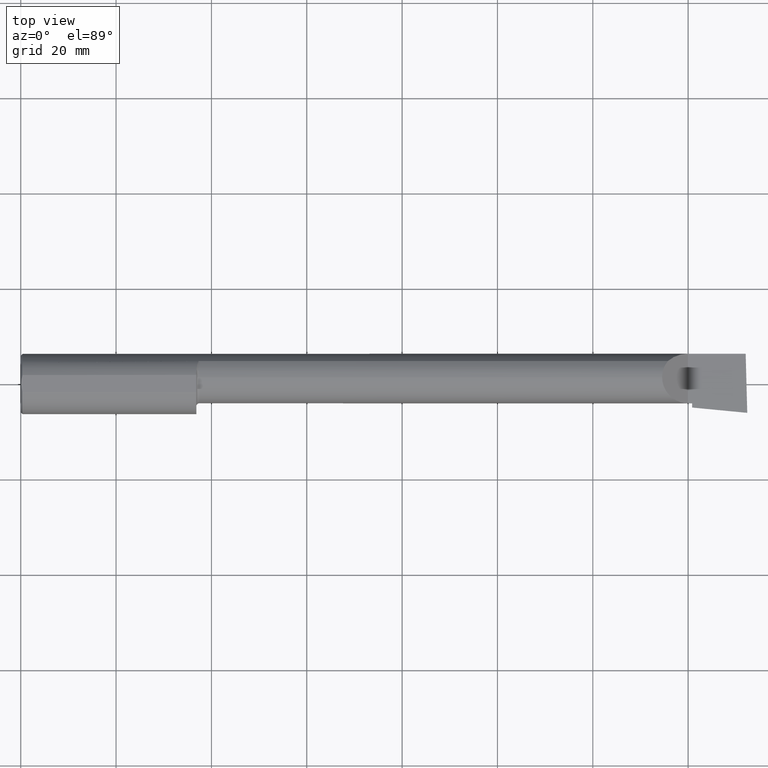
[diagram: clean part render]
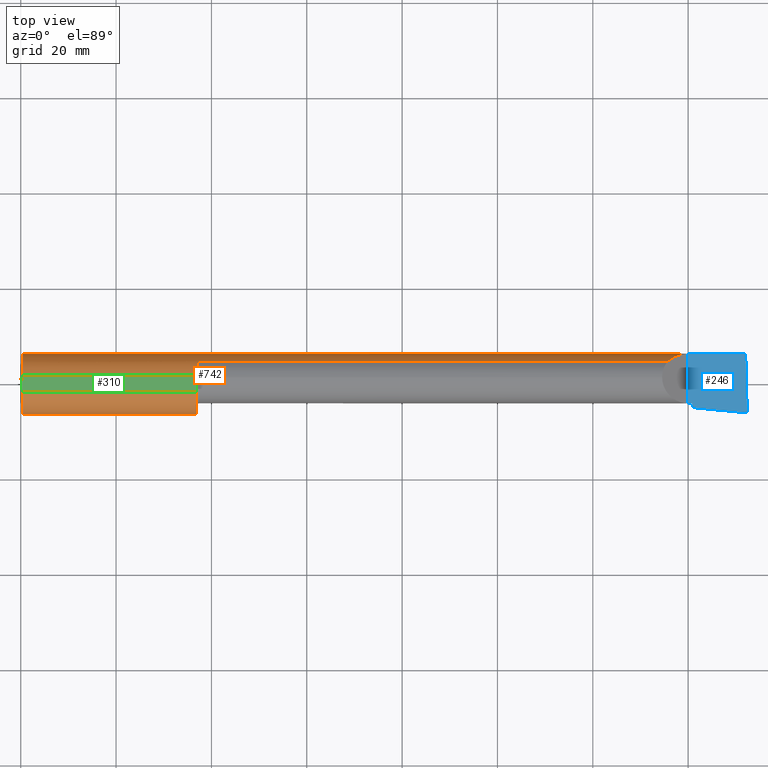
[diagram: same view with three faces highlighted in distinct colors, each labeled with its STEP entity id]
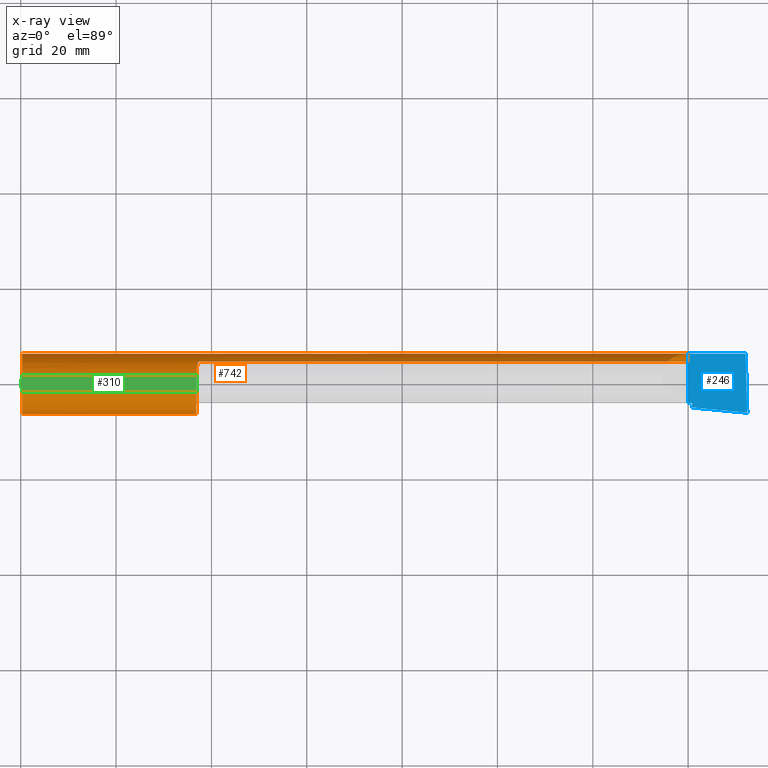
[diagram: x-ray of the same camera — body ghosted, the three highlighted faces saturated]
A machine part, top view with three faces highlighted in distinct colors.
The next image is the same camera in x-ray (body ghosted, the three faces saturated) — at least one of them is partly hidden behind the body in this view.
Their STEP definitions:

[orange] entity #742 — the highlighted cylindrical surface (edge-blend (fillet) strip) has radius 6.3462 mm, axis along (-1, -0, -0).
#1 = CARTESIAN_POINT ( 'NONE',  ( 5.344079160038587517, 0.1868028301886762721, 0.1659208399614119367 ) ) ;
#4 = AXIS2_PLACEMENT_3D ( 'NONE', #417, #405, #480 ) ;
#14 = LINE ( 'NONE', #159, #235 ) ;
#19 = EDGE_CURVE ( 'NONE', #177, #350, #317, .T. ) ;
#33 = CARTESIAN_POINT ( 'NONE',  ( 1.469285582744839669, 0.1841881072713785483, -0.1688230283719376612 ) ) ;
#34 = CARTESIAN_POINT ( 'NONE',  ( 5.968970726278977956, 0.1868028301886783815, -0.1659208399614098550 ) ) ;
#44 = ORIENTED_EDGE ( 'NONE', *, *, #481, .T. ) ;
#45 =( BOUNDED_CURVE ( )  B_SPLINE_CURVE ( 3, ( #640, #288, #528, #759 ),
 .UNSPECIFIED., .F., .T. ) 
 B_SPLINE_CURVE_WITH_KNOTS ( ( 4, 4 ),
 ( 0.8445312661599968518, 1.570796326794897002 ),
 .UNSPECIFIED. ) 
 CURVE ( )  GEOMETRIC_REPRESENTATION_ITEM ( )  RATIONAL_B_SPLINE_CURVE ( ( 1.000000000000000000, 0.9565258159410975347, 0.9565258159410975347, 1.000000000000000000 ) ) 
 REPRESENTATION_ITEM ( '' )  );
#48 = VERTEX_POINT ( 'NONE', #283 ) ;
#55 = ORIENTED_EDGE ( 'NONE', *, *, #409, .T. ) ;
#59 = ORIENTED_EDGE ( 'NONE', *, *, #421, .T. ) ;
#72 = LINE ( 'NONE', #581, #437 ) ;
#84 = CARTESIAN_POINT ( 'NONE',  ( 1.450000000000000622, 0.08036415094339396936, 0.2365726648265757681 ) ) ;
#89 = EDGE_CURVE ( 'NONE', #429, #444, #293, .T. ) ;
#90 = DIRECTION ( 'NONE',  ( -1.000000000000000000, -0.000000000000000000, -0.000000000000000000 ) ) ;
#99 = DIRECTION ( 'NONE',  ( 1.000000000000000000, 0.000000000000000000, 0.000000000000000000 ) ) ;
#103 = CARTESIAN_POINT ( 'NONE',  ( 1.469294329172793789, 0.1841965204963163516, 0.1688138510234162559 ) ) ;
#121 = CARTESIAN_POINT ( 'NONE',  ( 1.450000000000000622, 0.08036415094339396936, -0.2365726648265757681 ) ) ;
#134 = ORIENTED_EDGE ( 'NONE', *, *, #229, .T. ) ;
#137 = CARTESIAN_POINT ( 'NONE',  ( 1.465875558094660303, 0.1799506819598015173, -0.1733486322212205444 ) ) ;
#150 = CARTESIAN_POINT ( 'NONE',  ( 1.452700393434439796, 0.1312406203802464477, 0.2128933010837863737 ) ) ;
#159 = CARTESIAN_POINT ( 'NONE',  ( 3.510000000000000675, 0.1868028301886783815, -0.1659208399614098550 ) ) ;
#163 = CIRCLE ( 'NONE', #382, 0.2498499999999999888 ) ;
#168 = CARTESIAN_POINT ( 'NONE',  ( 1.470147539572908890, 0.1849815983377210704, 0.1679517088135094594 ) ) ;
#172 = VERTEX_POINT ( 'NONE', #543 ) ;
#177 = VERTEX_POINT ( 'NONE', #121 ) ;
#182 = EDGE_LOOP ( 'NONE', ( #257, #55, #541, #341, #530, #490, #228, #534, #647, #597, #134, #44, #59 ) ) ;
#194 = DIRECTION ( 'NONE',  ( 1.000000000000000000, 0.000000000000000000, 0.000000000000000000 ) ) ;
#199 = AXIS2_PLACEMENT_3D ( 'NONE', #632, #336, #520 ) ;
#204 = LINE ( 'NONE', #440, #494 ) ;
#206 = CARTESIAN_POINT ( 'NONE',  ( 1.451680899895054111, 0.1215019751025605416, 0.2186055937858626952 ) ) ;
#213 = CARTESIAN_POINT ( 'NONE',  ( 1.467022161877250541, 0.1817412653940166101, 0.1714670312165164356 ) ) ;
#220 = CARTESIAN_POINT ( 'NONE',  ( 0.01499999999999998904, 0.000000000000000000, -0.2498499999999999888 ) ) ;
#225 = VERTEX_POINT ( 'NONE', #34 ) ;
#228 = ORIENTED_EDGE ( 'NONE', *, *, #547, .F. ) ;
#229 = EDGE_CURVE ( 'NONE', #670, #750, #204, .T. ) ;
#231 = DIRECTION ( 'NONE',  ( -1.000000000000000000, -0.000000000000000000, -0.000000000000000000 ) ) ;
#234 = FACE_OUTER_BOUND ( 'NONE', #182, .T. ) ;
#235 = VECTOR ( 'NONE', #602, 39.37007874015748143 ) ;
#251 = CIRCLE ( 'NONE', #747, 0.2498499999999999888 ) ;
#254 = CARTESIAN_POINT ( 'NONE',  ( 0.01499999999999998904, 0.000000000000000000, 0.000000000000000000 ) ) ;
#257 = ORIENTED_EDGE ( 'NONE', *, *, #465, .F. ) ;
#265 = CARTESIAN_POINT ( 'NONE',  ( 5.986926801651457630, 0.2498499999999998222, -2.376133405444120600E-16 ) ) ;
#283 = CARTESIAN_POINT ( 'NONE',  ( 1.475000000000000533, 0.1868028301886770215, -0.1659208399614113261 ) ) ;
#288 = CARTESIAN_POINT ( 'NONE',  ( 5.390325100969864280, 0.2278791102234763999, 0.1196748990301354371 ) ) ;
#293 = CIRCLE ( 'NONE', #532, 0.2498499999999999888 ) ;
#297 = EDGE_CURVE ( 'NONE', #601, #311, #251, .T. ) ;
#299 = CYLINDRICAL_SURFACE ( 'NONE', #4, 0.2498499999999999888 ) ;
#302 = DIRECTION ( 'NONE',  ( 1.000000000000000000, 0.000000000000000000, 0.000000000000000000 ) ) ;
#311 = VERTEX_POINT ( 'NONE', #510 ) ;
#317 = CIRCLE ( 'NONE', #199, 0.2498499999999999888 ) ;
#320 = EDGE_CURVE ( 'NONE', #311, #670, #762, .T. ) ;
#321 = CARTESIAN_POINT ( 'NONE',  ( 1.457342647456793427, 0.1582204157543801448, 0.1936739931581306640 ) ) ;
#336 = DIRECTION ( 'NONE',  ( -1.000000000000000000, -0.000000000000000000, -0.000000000000000000 ) ) ;
#338 = CARTESIAN_POINT ( 'NONE',  ( 5.979603243914508148, 0.2498499999999999610, -0.06185424669427579819 ) ) ;
#341 = ORIENTED_EDGE ( 'NONE', *, *, #19, .T. ) ;
#350 = VERTEX_POINT ( 'NONE', #660 ) ;
#354 =( BOUNDED_CURVE ( )  B_SPLINE_CURVE ( 3, ( #389, #634, #338, #576 ),
 .UNSPECIFIED., .F., .T. ) 
 B_SPLINE_CURVE_WITH_KNOTS ( ( 4, 4 ),
 ( 0.6220170400679957412, 1.348282100702882680 ),
 .UNSPECIFIED. ) 
 CURVE ( )  GEOMETRIC_REPRESENTATION_ITEM ( )  RATIONAL_B_SPLINE_CURVE ( ( 1.000000000000000000, 0.9565258159410989780, 0.9565258159410989780, 1.000000000000000000 ) ) 
 REPRESENTATION_ITEM ( '' )  );
#359 = CARTESIAN_POINT ( 'NONE',  ( 0.000000000000000000, -0.06997856814768378675, 0.2398499999999999244 ) ) ;
#367 = CARTESIAN_POINT ( 'NONE',  ( 1.462797058507745662, 0.1743943839926563877, -0.1789958554125722079 ) ) ;
#375 = CARTESIAN_POINT ( 'NONE',  ( 1.472232603162241027, 0.1862758070845851321, -0.1665151405181452271 ) ) ;
#380 = CARTESIAN_POINT ( 'NONE',  ( 1.450000000000000622, 0.06997856814768384226, 0.2398500000000000076 ) ) ;
#382 = AXIS2_PLACEMENT_3D ( 'NONE', #254, #542, #728 ) ;
#384 = CARTESIAN_POINT ( 'NONE',  ( 1.455552616244823128, 0.1495611067857145482, 0.2004473332852690914 ) ) ;
#386 = LINE ( 'NONE', #745, #616 ) ;
#389 = CARTESIAN_POINT ( 'NONE',  ( 5.968970726278977956, 0.1868028301886783815, -0.1659208399614098550 ) ) ;
#404 = EDGE_CURVE ( 'NONE', #652, #601, #72, .T. ) ;
#405 = DIRECTION ( 'NONE',  ( -1.000000000000000000, -0.000000000000000000, -0.000000000000000000 ) ) ;
#409 = EDGE_CURVE ( 'NONE', #225, #48, #14, .T. ) ;
#410 = EDGE_CURVE ( 'NONE', #350, #444, #419, .T. ) ;
#417 = CARTESIAN_POINT ( 'NONE',  ( 0.000000000000000000, 0.000000000000000000, 0.000000000000000000 ) ) ;
#419 = LINE ( 'NONE', #359, #516 ) ;
#421 = EDGE_CURVE ( 'NONE', #172, #716, #386, .T. ) ;
#425 = CARTESIAN_POINT ( 'NONE',  ( 0.01499999999999998904, 0.000000000000000000, 0.000000000000000000 ) ) ;
#429 = VERTEX_POINT ( 'NONE', #220 ) ;
#437 = VECTOR ( 'NONE', #99, 39.37007874015748143 ) ;
#440 = CARTESIAN_POINT ( 'NONE',  ( 3.510000000000000675, 0.1868028301886783815, 0.1659208399614098550 ) ) ;
#444 = VERTEX_POINT ( 'NONE', #517 ) ;
#447 = CARTESIAN_POINT ( 'NONE',  ( 1.475000000000000533, 0.1868028301886768827, 0.1659208399614114093 ) ) ;
#465 = EDGE_CURVE ( 'NONE', #225, #716, #354, .T. ) ;
#480 = DIRECTION ( 'NONE',  ( 0.000000000000000000, 0.000000000000000000, 1.000000000000000000 ) ) ;
#481 = EDGE_CURVE ( 'NONE', #750, #172, #45, .T. ) ;
#483 = CARTESIAN_POINT ( 'NONE',  ( 1.462765002235294043, 0.1743275501927384064, 0.1790622127600498825 ) ) ;
#485 = B_SPLINE_CURVE_WITH_KNOTS ( 'NONE', 3,
 ( #503, #555, #375, #617, #33, #733, #137, #367, #486, #557, #726, #611, #613, #620 ),
 .UNSPECIFIED., .F., .F.,
 ( 4, 2, 2, 2, 2, 2, 4 ),
 ( 1.967619685288262155E-07, 0.0001090840123077873724, 0.0002179712626470459212, 0.0004357457633255741591, 0.0008712947646826288460, 0.001742392767396743749, 0.003484588772824970086 ),
 .UNSPECIFIED. ) ;
#486 = CARTESIAN_POINT ( 'NONE',  ( 1.461285743882608346, 0.1704402150608090860, -0.1827701868778719430 ) ) ;
#490 = ORIENTED_EDGE ( 'NONE', *, *, #89, .F. ) ;
#494 = VECTOR ( 'NONE', #194, 39.37007874015748143 ) ;
#503 = CARTESIAN_POINT ( 'NONE',  ( 1.475000000000000533, 0.1868028301886770215, -0.1659208399614113261 ) ) ;
#510 = CARTESIAN_POINT ( 'NONE',  ( 1.450000000000000622, 0.08036415094339396936, 0.2365726648265757681 ) ) ;
#516 = VECTOR ( 'NONE', #703, 39.37007874015748143 ) ;
#517 = CARTESIAN_POINT ( 'NONE',  ( 0.01499999999999965423, -0.06997856814768402267, 0.2398500000000000076 ) ) ;
#519 = EDGE_CURVE ( 'NONE', #48, #177, #485, .T. ) ;
#520 = DIRECTION ( 'NONE',  ( 0.000000000000000000, 0.000000000000000000, 1.000000000000000000 ) ) ;
#528 = CARTESIAN_POINT ( 'NONE',  ( 5.448145753305722927, 0.2498500000000000443, 0.06185424669427648514 ) ) ;
#530 = ORIENTED_EDGE ( 'NONE', *, *, #410, .T. ) ;
#532 = AXIS2_PLACEMENT_3D ( 'NONE', #425, #231, #668 ) ;
#534 = ORIENTED_EDGE ( 'NONE', *, *, #404, .T. ) ;
#541 = ORIENTED_EDGE ( 'NONE', *, *, #519, .T. ) ;
#542 = DIRECTION ( 'NONE',  ( -1.000000000000000000, -0.000000000000000000, -0.000000000000000000 ) ) ;
#543 = CARTESIAN_POINT ( 'NONE',  ( 5.510000000000000675, 0.2498499999999998222, -1.849216666712503932E-16 ) ) ;
#547 = EDGE_CURVE ( 'NONE', #652, #429, #163, .T. ) ;
#555 = CARTESIAN_POINT ( 'NONE',  ( 1.473547768521294321, 0.1868028301886769937, -0.1659208399614114648 ) ) ;
#556 = CARTESIAN_POINT ( 'NONE',  ( 1.461269318387891758, 0.1703938977634081586, 0.1828127877825272696 ) ) ;
#557 = CARTESIAN_POINT ( 'NONE',  ( 1.457341173198634765, 0.1582250006961533895, -0.1936724403215147883 ) ) ;
#560 = CARTESIAN_POINT ( 'NONE',  ( 0.01499999999999998904, 0.06997856814768384226, 0.2398499999999999244 ) ) ;
#571 = CARTESIAN_POINT ( 'NONE',  ( 1.473549916698492890, 0.1868028301886769660, 0.1659208399614114371 ) ) ;
#576 = CARTESIAN_POINT ( 'NONE',  ( 5.986926801651457630, 0.2498499999999998222, -2.376133405444120600E-16 ) ) ;
#581 = CARTESIAN_POINT ( 'NONE',  ( 0.000000000000000000, 0.06997856814768384226, 0.2398499999999999244 ) ) ;
#597 = ORIENTED_EDGE ( 'NONE', *, *, #320, .T. ) ;
#601 = VERTEX_POINT ( 'NONE', #380 ) ;
#602 = DIRECTION ( 'NONE',  ( -1.000000000000000000, -0.000000000000000000, -0.000000000000000000 ) ) ;
#611 = CARTESIAN_POINT ( 'NONE',  ( 1.451227564404961701, 0.1217005943024268705, -0.2193523119135150634 ) ) ;
#613 = CARTESIAN_POINT ( 'NONE',  ( 1.449999999999990630, 0.1016924291521863755, -0.2293274111511752200 ) ) ;
#614 = CARTESIAN_POINT ( 'NONE',  ( 1.450331894516965203, 0.1014003285145096273, 0.2286243840132596294 ) ) ;
#616 = VECTOR ( 'NONE', #302, 39.37007874015748143 ) ;
#617 = CARTESIAN_POINT ( 'NONE',  ( 1.470138573936401016, 0.1849738682364304998, -0.1679602226613279570 ) ) ;
#619 = CARTESIAN_POINT ( 'NONE',  ( 1.450000000000000400, 0.09103905338546344761, 0.2329463816641093032 ) ) ;
#620 = CARTESIAN_POINT ( 'NONE',  ( 1.450000000000000622, 0.08036415094339396936, -0.2365726648265757681 ) ) ;
#623 = CARTESIAN_POINT ( 'NONE',  ( 1.450000000000000622, 0.000000000000000000, 0.000000000000000000 ) ) ;
#632 = CARTESIAN_POINT ( 'NONE',  ( 1.450000000000000622, 0.000000000000000000, 0.000000000000000000 ) ) ;
#634 = CARTESIAN_POINT ( 'NONE',  ( 5.973345850378710686, 0.2278791102234770383, -0.1196748990301337856 ) ) ;
#640 = CARTESIAN_POINT ( 'NONE',  ( 5.344079160038587517, 0.1868028301886762721, 0.1659208399614119367 ) ) ;
#647 = ORIENTED_EDGE ( 'NONE', *, *, #297, .T. ) ;
#652 = VERTEX_POINT ( 'NONE', #560 ) ;
#660 = CARTESIAN_POINT ( 'NONE',  ( 1.450000000000000622, -0.06997856814768405043, 0.2398500000000000076 ) ) ;
#668 = DIRECTION ( 'NONE',  ( 0.000000000000000000, 0.000000000000000000, 1.000000000000000000 ) ) ;
#670 = VERTEX_POINT ( 'NONE', #447 ) ;
#674 = DIRECTION ( 'NONE',  ( 0.000000000000000000, 0.000000000000000000, 1.000000000000000000 ) ) ;
#690 = CARTESIAN_POINT ( 'NONE',  ( 1.475000000000000533, 0.1868028301886768827, 0.1659208399614114093 ) ) ;
#692 = CARTESIAN_POINT ( 'NONE',  ( 1.472248316546591829, 0.1862833954073861431, 0.1665066509556037133 ) ) ;
#696 = CARTESIAN_POINT ( 'NONE',  ( 1.465861643147096771, 0.1799299906519273851, 0.1733704358813205892 ) ) ;
#703 = DIRECTION ( 'NONE',  ( -1.000000000000000000, -0.000000000000000000, -0.000000000000000000 ) ) ;
#716 = VERTEX_POINT ( 'NONE', #265 ) ;
#726 = CARTESIAN_POINT ( 'NONE',  ( 1.455537042546467763, 0.1495003888704960482, -0.2004994225712694034 ) ) ;
#728 = DIRECTION ( 'NONE',  ( 0.000000000000000000, 0.000000000000000000, 1.000000000000000000 ) ) ;
#733 = CARTESIAN_POINT ( 'NONE',  ( 1.467016733372314530, 0.1817333077058744806, -0.1714754572696089441 ) ) ;
#742 = ADVANCED_FACE ( 'NONE', ( #234 ), #299, .T. ) ;
#745 = CARTESIAN_POINT ( 'NONE',  ( 4.678149108241350816E-32, 0.2498499999999999888, 4.235963549344508711E-16 ) ) ;
#747 = AXIS2_PLACEMENT_3D ( 'NONE', #623, #90, #674 ) ;
#750 = VERTEX_POINT ( 'NONE', #1 ) ;
#759 = CARTESIAN_POINT ( 'NONE',  ( 5.510000000000000675, 0.2498499999999998222, -1.849216666712503932E-16 ) ) ;
#762 = B_SPLINE_CURVE_WITH_KNOTS ( 'NONE', 3,
 ( #84, #619, #614, #206, #150, #384, #321, #556, #483, #696, #213, #103, #168, #692, #571, #690 ),
 .UNSPECIFIED., .F., .F.,
 ( 4, 2, 2, 2, 2, 2, 2, 4 ),
 ( 0.0001284169230012125818, 0.0009841683951816522676, 0.001839919867362092062, 0.002695671339542531856, 0.003123547075632751753, 0.003337484943677858015, 0.003444453877700411580, 0.003551422811722965579 ),
 .UNSPECIFIED. ) ;

[blue] entity #246 — the highlighted planar face has unit normal (-0, 0, -1).
#23 = CARTESIAN_POINT ( 'NONE',  ( 5.510000000000000675, -0.1601500000000002644, -1.849216666712503932E-16 ) ) ;
#36 = VECTOR ( 'NONE', #727, 39.37007874015748143 ) ;
#49 = LINE ( 'NONE', #148, #702 ) ;
#51 = EDGE_LOOP ( 'NONE', ( #296, #216, #318, #468, #169, #113 ) ) ;
#52 = VECTOR ( 'NONE', #523, 39.37007874015748143 ) ;
#77 = DIRECTION ( 'NONE',  ( 1.000000000000000000, 0.000000000000000000, 0.000000000000000000 ) ) ;
#95 = LINE ( 'NONE', #209, #52 ) ;
#110 = EDGE_CURVE ( 'NONE', #268, #224, #719, .T. ) ;
#113 = ORIENTED_EDGE ( 'NONE', *, *, #687, .T. ) ;
#144 = PLANE ( 'NONE',  #448 ) ;
#148 = CARTESIAN_POINT ( 'NONE',  ( 6.001130543297605868, -0.2382588589380725819, -2.391615553386899761E-16 ) ) ;
#169 = ORIENTED_EDGE ( 'NONE', *, *, #110, .T. ) ;
#172 = VERTEX_POINT ( 'NONE', #543 ) ;
#175 = VERTEX_POINT ( 'NONE', #23 ) ;
#189 = DIRECTION ( 'NONE',  ( 0.02677973311239231768, -0.9996413586354002678, -2.916664445122107707E-18 ) ) ;
#209 = CARTESIAN_POINT ( 'NONE',  ( 5.510000000000000675, -0.2500000000000000555, -1.849216666712503932E-16 ) ) ;
#216 = ORIENTED_EDGE ( 'NONE', *, *, #421, .F. ) ;
#224 = VERTEX_POINT ( 'NONE', #621 ) ;
#246 = ADVANCED_FACE ( 'NONE', ( #431 ), #144, .F. ) ;
#253 = CARTESIAN_POINT ( 'NONE',  ( 5.544999999999999929, -0.2500000000000000555, -1.887870261551340527E-16 ) ) ;
#265 = CARTESIAN_POINT ( 'NONE',  ( 5.986926801651457630, 0.2498499999999998222, -2.376133405444120600E-16 ) ) ;
#268 = VERTEX_POINT ( 'NONE', #500 ) ;
#296 = ORIENTED_EDGE ( 'NONE', *, *, #492, .F. ) ;
#302 = DIRECTION ( 'NONE',  ( 1.000000000000000000, 0.000000000000000000, 0.000000000000000000 ) ) ;
#318 = ORIENTED_EDGE ( 'NONE', *, *, #439, .F. ) ;
#323 = CARTESIAN_POINT ( 'NONE',  ( 6.000000000000000888, -0.2500000000000000555, -2.390366994456230070E-16 ) ) ;
#327 = CARTESIAN_POINT ( 'NONE',  ( 6.000000000000001776, -0.2381500000000003059, 4.268512490100411402E-16 ) ) ;
#329 = VECTOR ( 'NONE', #189, 39.37007874015748854 ) ;
#376 = DIRECTION ( 'NONE',  ( -1.000000000000000000, 0.000000000000000000, 1.104388423966789920E-16 ) ) ;
#386 = LINE ( 'NONE', #745, #616 ) ;
#421 = EDGE_CURVE ( 'NONE', #172, #716, #386, .T. ) ;
#427 = LINE ( 'NONE', #720, #562 ) ;
#431 = FACE_OUTER_BOUND ( 'NONE', #51, .T. ) ;
#439 = EDGE_CURVE ( 'NONE', #175, #172, #95, .T. ) ;
#443 = DIRECTION ( 'NONE',  ( -1.104388423966789920E-16, 0.000000000000000000, -1.000000000000000000 ) ) ;
#448 = AXIS2_PLACEMENT_3D ( 'NONE', #323, #443, #376 ) ;
#459 = LINE ( 'NONE', #464, #329 ) ;
#464 = CARTESIAN_POINT ( 'NONE',  ( 6.000317226026190554, -0.2499915017238489856, -2.390717335207336421E-16 ) ) ;
#468 = ORIENTED_EDGE ( 'NONE', *, *, #567, .T. ) ;
#492 = EDGE_CURVE ( 'NONE', #716, #704, #459, .T. ) ;
#500 = CARTESIAN_POINT ( 'NONE',  ( 5.544999999999999929, -0.1601499999999999868, 4.235963549344505753E-16 ) ) ;
#523 = DIRECTION ( 'NONE',  ( -0.000000000000000000, 1.000000000000000000, -0.000000000000000000 ) ) ;
#543 = CARTESIAN_POINT ( 'NONE',  ( 5.510000000000000675, 0.2498499999999998222, -1.849216666712503932E-16 ) ) ;
#562 = VECTOR ( 'NONE', #77, 39.37007874015748143 ) ;
#567 = EDGE_CURVE ( 'NONE', #175, #268, #427, .T. ) ;
#616 = VECTOR ( 'NONE', #302, 39.37007874015748143 ) ;
#621 = CARTESIAN_POINT ( 'NONE',  ( 5.544999999999999929, -0.1943384830701199995, 4.241834287037283735E-16 ) ) ;
#687 = EDGE_CURVE ( 'NONE', #224, #704, #49, .T. ) ;
#702 = VECTOR ( 'NONE', #748, 39.37007874015748854 ) ;
#704 = VERTEX_POINT ( 'NONE', #327 ) ;
#716 = VERTEX_POINT ( 'NONE', #265 ) ;
#719 = LINE ( 'NONE', #253, #36 ) ;
#720 = CARTESIAN_POINT ( 'NONE',  ( 4.678149108241350816E-32, -0.1601500000000002366, 4.235963549344508711E-16 ) ) ;
#727 = DIRECTION ( 'NONE',  ( 0.000000000000000000, -1.000000000000000000, 0.000000000000000000 ) ) ;
#745 = CARTESIAN_POINT ( 'NONE',  ( 4.678149108241350816E-32, 0.2498499999999999888, 4.235963549344508711E-16 ) ) ;
#748 = DIRECTION ( 'NONE',  ( 0.9953961983671787417, -0.09584575252022418945, -1.087413588444485978E-16 ) ) ;

[green] entity #310 — the highlighted planar face has unit normal (0, -0, -1).
#43 = DIRECTION ( 'NONE',  ( 0.000000000000000000, -1.138839417068644240E-16, -1.000000000000000000 ) ) ;
#53 = CARTESIAN_POINT ( 'NONE',  ( 0.004999999999999696527, 5.665694225652706815E-17, 0.2398500000000000076 ) ) ;
#72 = LINE ( 'NONE', #581, #437 ) ;
#81 = CARTESIAN_POINT ( 'NONE',  ( 0.004999999999999696527, 5.665694225652706815E-17, 0.2398500000000000076 ) ) ;
#93 = PLANE ( 'NONE',  #278 ) ;
#94 = CARTESIAN_POINT ( 'NONE',  ( 0.01180609504125302439, -0.05857511741890349816, 0.2398500000000000354 ) ) ;
#98 = EDGE_CURVE ( 'NONE', #219, #652, #511, .T. ) ;
#99 = DIRECTION ( 'NONE',  ( 1.000000000000000000, 0.000000000000000000, 0.000000000000000000 ) ) ;
#130 = CARTESIAN_POINT ( 'NONE',  ( 0.004999999999999972349, 0.01185123536186991414, 0.2398500000000000631 ) ) ;
#131 = ORIENTED_EDGE ( 'NONE', *, *, #625, .F. ) ;
#152 = CARTESIAN_POINT ( 'NONE',  ( 0.01499999999999965423, -0.06997856814768402267, 0.2398500000000000076 ) ) ;
#155 = EDGE_CURVE ( 'NONE', #350, #601, #478, .T. ) ;
#158 = CARTESIAN_POINT ( 'NONE',  ( 0.009274236576542723223, -0.04692405468904862348, 0.2398500000000000354 ) ) ;
#176 = B_SPLINE_CURVE_WITH_KNOTS ( 'NONE', 3,
 ( #152, #94, #158, #324, #573, #53 ),
 .UNSPECIFIED., .F., .F.,
 ( 4, 2, 4 ),
 ( 0.002856522843320430643, 0.003750867165537647135, 0.004645211487754864060 ),
 .UNSPECIFIED. ) ;
#184 = CARTESIAN_POINT ( 'NONE',  ( 0.01181966702888973680, 0.05862357455657494359, 0.2398500000000000354 ) ) ;
#193 = DIRECTION ( 'NONE',  ( 0.000000000000000000, 1.000000000000000000, -1.138839417068644240E-16 ) ) ;
#219 = VERTEX_POINT ( 'NONE', #568 ) ;
#238 = CARTESIAN_POINT ( 'NONE',  ( 0.005899890343961516036, 0.02378560009989256346, 0.2398500000000000354 ) ) ;
#267 = DIRECTION ( 'NONE',  ( 0.000000000000000000, 1.000000000000000000, -1.138839417068644240E-16 ) ) ;
#278 = AXIS2_PLACEMENT_3D ( 'NONE', #564, #43, #267 ) ;
#310 = ADVANCED_FACE ( 'NONE', ( #330 ), #93, .F. ) ;
#324 = CARTESIAN_POINT ( 'NONE',  ( 0.005880636388018911122, -0.02358947477502554638, 0.2398499999999999799 ) ) ;
#330 = FACE_OUTER_BOUND ( 'NONE', #348, .T. ) ;
#348 = EDGE_LOOP ( 'NONE', ( #761, #406, #518, #538, #131 ) ) ;
#350 = VERTEX_POINT ( 'NONE', #660 ) ;
#359 = CARTESIAN_POINT ( 'NONE',  ( 0.000000000000000000, -0.06997856814768378675, 0.2398499999999999244 ) ) ;
#380 = CARTESIAN_POINT ( 'NONE',  ( 1.450000000000000622, 0.06997856814768384226, 0.2398500000000000076 ) ) ;
#404 = EDGE_CURVE ( 'NONE', #652, #601, #72, .T. ) ;
#406 = ORIENTED_EDGE ( 'NONE', *, *, #155, .T. ) ;
#410 = EDGE_CURVE ( 'NONE', #350, #444, #419, .T. ) ;
#419 = LINE ( 'NONE', #359, #516 ) ;
#437 = VECTOR ( 'NONE', #99, 39.37007874015748143 ) ;
#444 = VERTEX_POINT ( 'NONE', #517 ) ;
#478 = LINE ( 'NONE', #715, #505 ) ;
#505 = VECTOR ( 'NONE', #193, 39.37007874015748143 ) ;
#511 = B_SPLINE_CURVE_WITH_KNOTS ( 'NONE', 3,
 ( #81, #130, #238, #604, #184, #653 ),
 .UNSPECIFIED., .F., .F.,
 ( 4, 2, 4 ),
 ( 0.004645211487754864060, 0.005540449869823556306, 0.006435688251892248551 ),
 .UNSPECIFIED. ) ;
#516 = VECTOR ( 'NONE', #703, 39.37007874015748143 ) ;
#517 = CARTESIAN_POINT ( 'NONE',  ( 0.01499999999999965423, -0.06997856814768402267, 0.2398500000000000076 ) ) ;
#518 = ORIENTED_EDGE ( 'NONE', *, *, #404, .F. ) ;
#538 = ORIENTED_EDGE ( 'NONE', *, *, #98, .F. ) ;
#560 = CARTESIAN_POINT ( 'NONE',  ( 0.01499999999999998904, 0.06997856814768384226, 0.2398499999999999244 ) ) ;
#564 = CARTESIAN_POINT ( 'NONE',  ( 6.000000000000000888, 0.2998500000000000609, 0.2398499999999999799 ) ) ;
#568 = CARTESIAN_POINT ( 'NONE',  ( 0.004999999999999696527, 5.665694225652706815E-17, 0.2398500000000000076 ) ) ;
#573 = CARTESIAN_POINT ( 'NONE',  ( 0.004999999999999962808, -0.01183939972798750580, 0.2398500000000000076 ) ) ;
#581 = CARTESIAN_POINT ( 'NONE',  ( 0.000000000000000000, 0.06997856814768384226, 0.2398499999999999244 ) ) ;
#601 = VERTEX_POINT ( 'NONE', #380 ) ;
#604 = CARTESIAN_POINT ( 'NONE',  ( 0.009312860630924877509, 0.04712480857212048013, 0.2398500000000000076 ) ) ;
#625 = EDGE_CURVE ( 'NONE', #444, #219, #176, .T. ) ;
#652 = VERTEX_POINT ( 'NONE', #560 ) ;
#653 = CARTESIAN_POINT ( 'NONE',  ( 0.01499999999999998904, 0.06997856814768384226, 0.2398499999999999244 ) ) ;
#660 = CARTESIAN_POINT ( 'NONE',  ( 1.450000000000000622, -0.06997856814768405043, 0.2398500000000000076 ) ) ;
#703 = DIRECTION ( 'NONE',  ( -1.000000000000000000, -0.000000000000000000, -0.000000000000000000 ) ) ;
#715 = CARTESIAN_POINT ( 'NONE',  ( 1.450000000000000622, 0.2998500000000000609, 0.2398499999999999799 ) ) ;
#761 = ORIENTED_EDGE ( 'NONE', *, *, #410, .F. ) ;